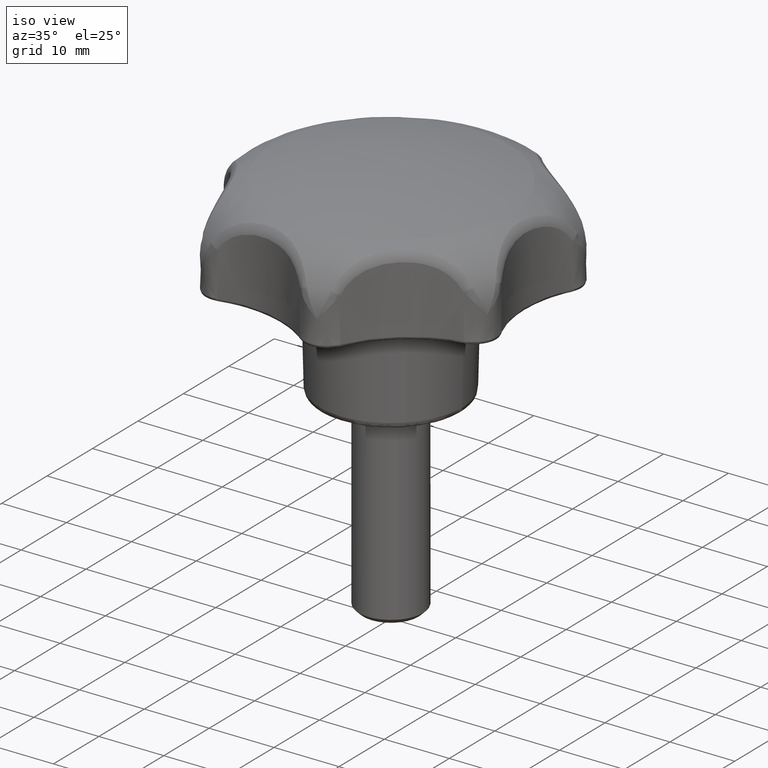
[diagram: clean part render]
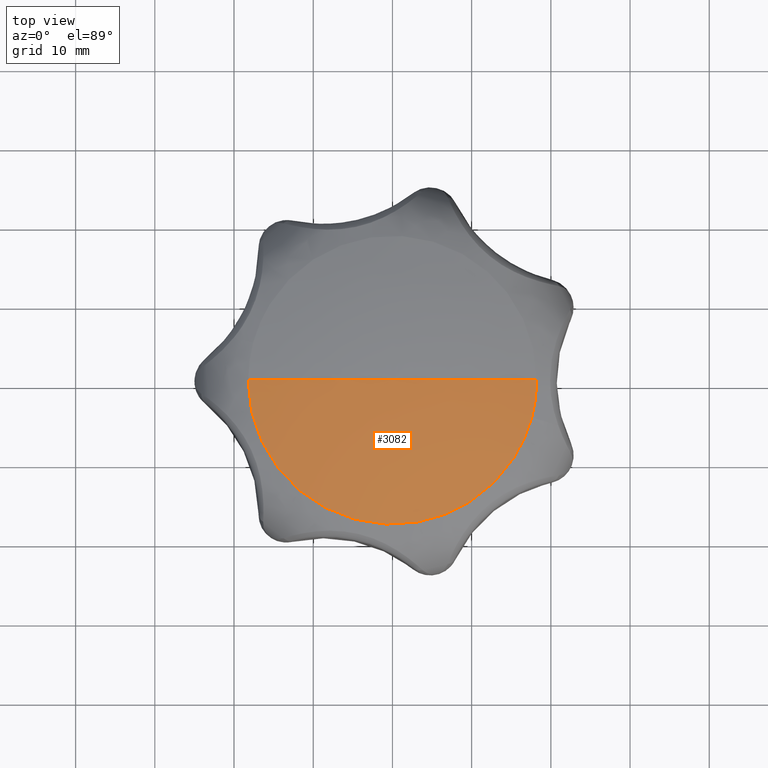
[diagram: tour spotlight — one face highlighted and labeled with its STEP entity id]
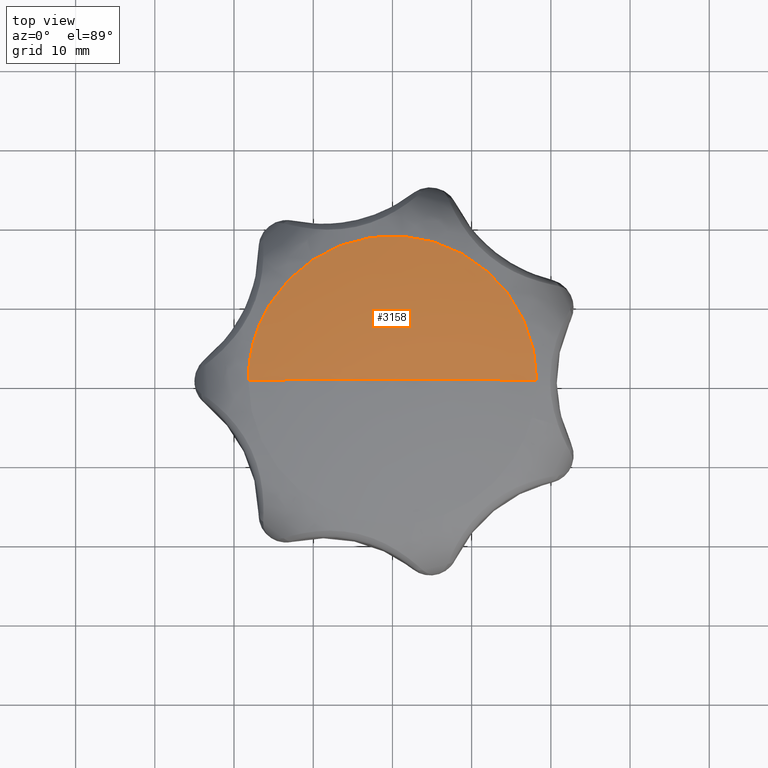
[diagram: tour spotlight — one face highlighted and labeled with its STEP entity id]
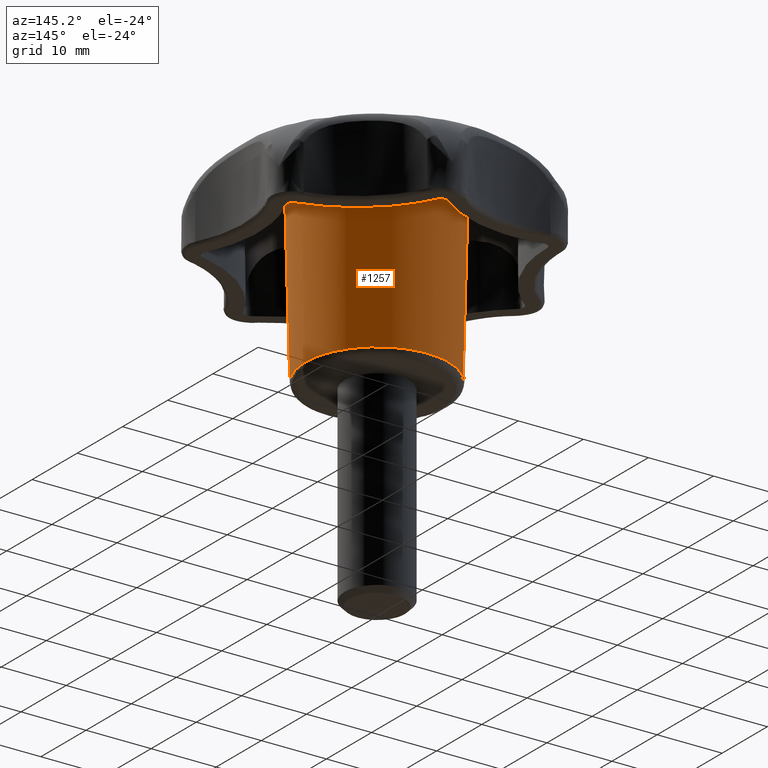
[diagram: tour spotlight — one face highlighted and labeled with its STEP entity id]
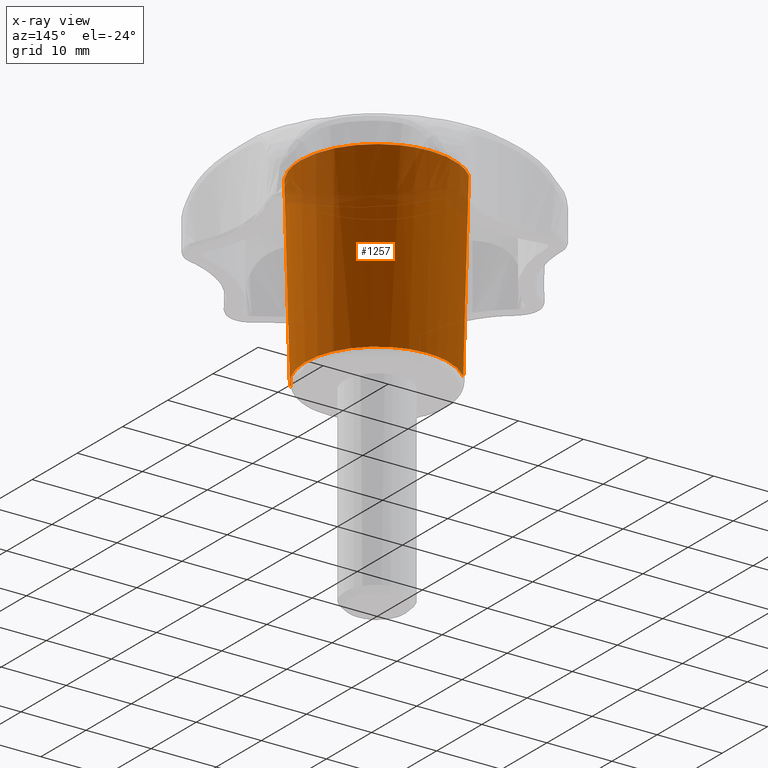
[diagram: x-ray of the same camera — body ghosted, this tour face saturated]
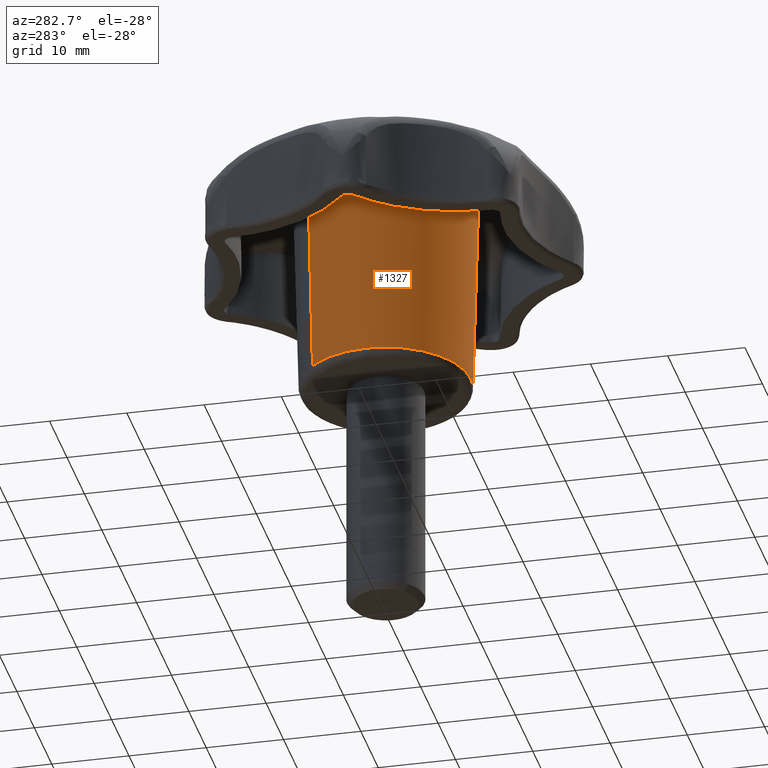
[diagram: tour spotlight — one face highlighted and labeled with its STEP entity id]
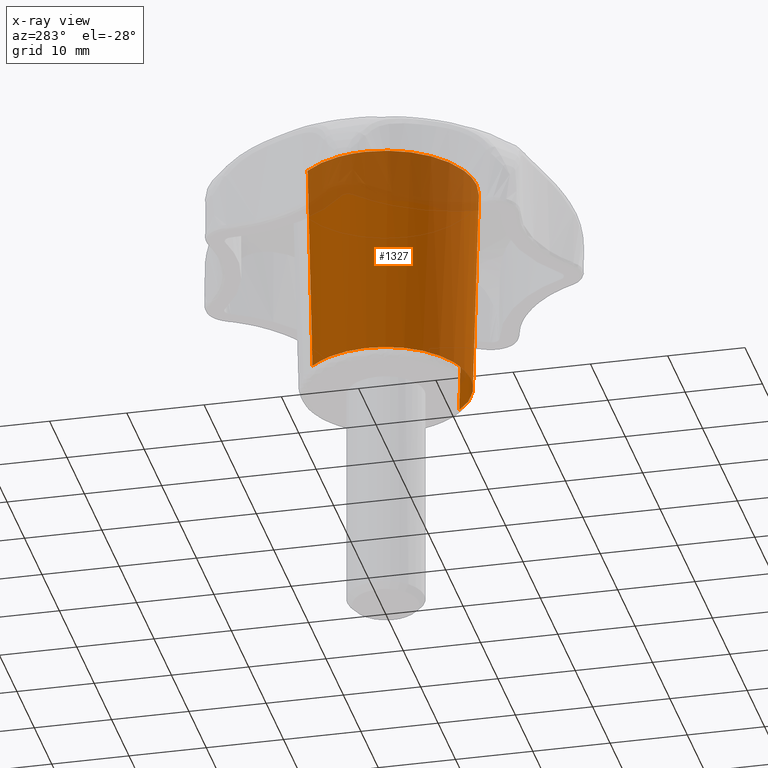
[diagram: x-ray of the same camera — body ghosted, this tour face saturated]
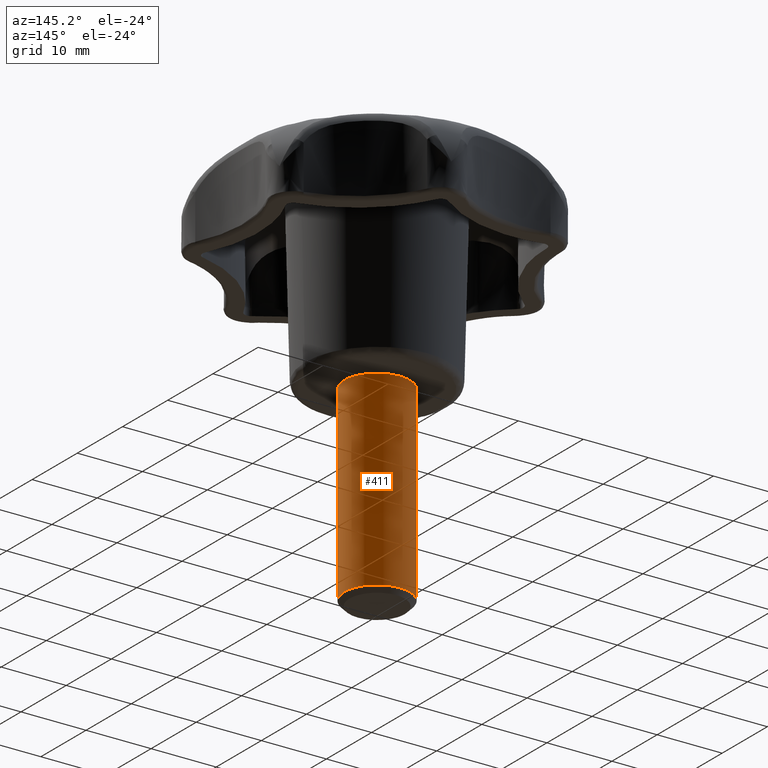
[diagram: tour spotlight — one face highlighted and labeled with its STEP entity id]
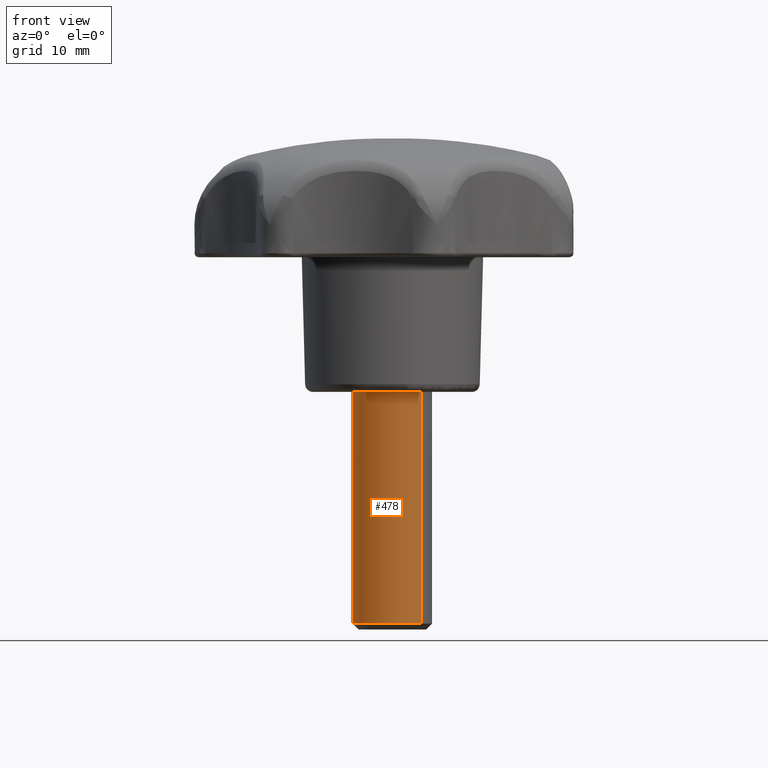
[diagram: tour spotlight — one face highlighted and labeled with its STEP entity id]
A machine part: a face-by-face anatomy tour. The part has 89 B-rep faces; the first image is the clean iso view, then the 6 largest visible faces are spotlighted one at a time (largest first), each with its STEP entity span.

Face 1 — top view, entity #3082. In plain terms, the highlighted face is a freeform B-spline surface patch.
Definition (entity closure, byte-faithful):
#2986=CARTESIAN_POINT('',(1.026090E-014,-7.886015E-015,31.991591414524180));
#2987=CARTESIAN_POINT('',(1.028089E-014,-8.234958E-015,31.991591414524173));
#2988=CARTESIAN_POINT('',(1.028089E-014,-8.584473E-015,31.991591414524169));
#2989=CARTESIAN_POINT('',(1.028089E-014,-2.079693E-014,31.991591414524173));
#2990=CARTESIAN_POINT('',(-1.931560E-015,-2.079693E-014,31.991591414524169));
#2991=CARTESIAN_POINT('',(-1.414401E-014,-2.079693E-014,31.991591414524173));
#2992=CARTESIAN_POINT('',(-1.414401E-014,-8.584473E-015,31.991591414524169));
#2993=CARTESIAN_POINT('',(-1.414401E-014,-7.877057E-015,31.991591414524176));
#2994=CARTESIAN_POINT('',(-1.406233E-014,-7.174372E-015,31.991591414524173));
#2995=CARTESIAN_POINT('',(9.719729502479247,0.556805088107629,32.142813547327407));
#2996=CARTESIAN_POINT('',(9.735665024881241,0.278630605624903,32.142813547327400));
#2997=CARTESIAN_POINT('',(9.735665026463677,0.000000055292106,32.142813547327393));
#2998=CARTESIAN_POINT('',(9.735665081755791,-9.735664971171568,32.142813547327393));
#2999=CARTESIAN_POINT('',(0.000000055292113,-9.735665026463687,32.142813547327400));
#3000=CARTESIAN_POINT('',(-9.735664971171561,-9.735665081755800,32.142813547327393));
#3001=CARTESIAN_POINT('',(-9.735665026463680,-0.000000055292124,32.142813547327393));
#3002=CARTESIAN_POINT('',(-9.735665029666521,0.563946413184989,32.142813547327385));
#3003=CARTESIAN_POINT('',(-9.670549388483508,1.124121004344865,32.142813547327393));
#3004=CARTESIAN_POINT('',(19.108889407046512,1.094673143652359,29.620827052072464));
#3005=CARTESIAN_POINT('',(19.140218482114449,0.547784938556842,29.620827052072453));
#3006=CARTESIAN_POINT('',(19.140218485225503,0.000000108703725,29.620827052072453));
#3007=CARTESIAN_POINT('',(19.140218593929237,-19.140218376521776,29.620827052072471));
#3008=CARTESIAN_POINT('',(0.000000108703734,-19.140218485225514,29.620827052072471));
#3009=CARTESIAN_POINT('',(-19.140218376521762,-19.140218593929255,29.620827052072471));
#3010=CARTESIAN_POINT('',(-19.140218485225503,-0.000000108703748,29.620827052072453));
#3011=CARTESIAN_POINT('',(-19.140218491522258,1.108712916167452,29.620827052072450));
#3012=CARTESIAN_POINT('',(-19.012201802815259,2.210010468571679,29.620827052072453));
#3020=(BOUNDED_SURFACE()B_SPLINE_SURFACE(2,2,((#2986,#2995,#3004),(#2987,#2996,#3005),(#2988,#2997,#3006),(#2989,#2998,#3007),(#2990,#2999,#3008),(#2991,#3000,#3009),(#2992,#3001,#3010),(#2993,#3002,#3011),(#2994,#3003,#3012)),.UNSPECIFIED.,.F.,.F.,.U.)B_SPLINE_SURFACE_WITH_KNOTS((3,2,2,2,3),(3,3),(-6.080000000000000,-6.0,-4.0,-2.0,-1.840000000000000),(-4.0,-3.629661612689495),.UNSPECIFIED.)GEOMETRIC_REPRESENTATION_ITEM()RATIONAL_B_SPLINE_SURFACE(((0.977505800795127,0.923493183930672,0.889483512490219),(0.988284271247462,0.933676084111758,0.899291404933841),(1.0,0.944744453873808,0.909952157589952),(0.707106781186548,0.668035209822551,0.643433341187185),(1.0,0.944744453873808,0.909952157589952),(0.707106781186548,0.668035209822551,0.643433341187185),(1.0,0.944744453873808,0.909952157589952),(0.976568542494924,0.922607714349708,0.888630652277730),(0.956886118190660,0.904012853149463,0.870720587815464)))REPRESENTATION_ITEM('')SURFACE());
#3021=CARTESIAN_POINT('',(18.211198396118341,0.0,29.863114584089448));
#3022=VERTEX_POINT('',#3021);
#3023=CARTESIAN_POINT('',(0.0,0.0,31.991591414524141));
#3024=VERTEX_POINT('',#3023);
#3025=CARTESIAN_POINT('',(18.211198396118341,0.0,29.863114584089448));
#3026=CARTESIAN_POINT('',(14.776254913202660,0.0,30.733965746536619));
#3027=CARTESIAN_POINT('',(8.719590932700960,0.0,31.785595901579139));
#3028=CARTESIAN_POINT('',(2.585559694739553,0.0,32.031797503785903));
#3029=CARTESIAN_POINT('',(0.0,0.0,31.991591414524141));
#3030=B_SPLINE_CURVE_WITH_KNOTS('',3,(#3025,#3026,#3027,#3028,#3029),.UNSPECIFIED.,.F.,.U.,(4,1,4),(2.143459E-010,10.630810520961001,18.388432306233931),.UNSPECIFIED.);
#3031=EDGE_CURVE('',#3022,#3024,#3030,.T.);
#3032=ORIENTED_EDGE('',*,*,#3031,.T.);
#3033=CARTESIAN_POINT('',(-18.211198396059860,0.0,29.863114584104281));
#3034=VERTEX_POINT('',#3033);
#3035=CARTESIAN_POINT('',(-18.211198396059860,0.0,29.863114584104281));
#3036=CARTESIAN_POINT('',(-15.704597608268170,0.0,30.498479006822279));
#3037=CARTESIAN_POINT('',(-9.679118276543552,0.0,31.673448801070968));
#3038=CARTESIAN_POINT('',(-3.543185624413008,0.0,32.046857288203157));
#3039=CARTESIAN_POINT('',(0.0,0.0,31.991591414524141));
#3040=B_SPLINE_CURVE_WITH_KNOTS('',3,(#3035,#3036,#3037,#3038,#3039),.UNSPECIFIED.,.F.,.U.,(4,1,4),(2.146656E-010,7.757621785461710,18.388432306173609),.UNSPECIFIED.);
#3041=EDGE_CURVE('',#3034,#3024,#3040,.T.);
#3042=ORIENTED_EDGE('',*,*,#3041,.F.);
#3043=CARTESIAN_POINT('',(17.580756814501768,-4.750236491730867,29.863114550777400));
#3044=VERTEX_POINT('',#3043);
#3045=CARTESIAN_POINT('',(-18.211198396059860,0.0,29.863114584104281));
#3046=CARTESIAN_POINT('',(-18.211238823272620,-0.852956757359833,29.863114584000829));
#3047=CARTESIAN_POINT('',(-18.095934093009920,-2.490642601457700,29.863114583696511));
#3048=CARTESIAN_POINT('',(-17.650178163731940,-4.632918294722463,29.863114583028320));
#3049=CARTESIAN_POINT('',(-17.005215197233429,-6.613933142519628,29.863114582198481));
#3050=CARTESIAN_POINT('',(-16.110083875087959,-8.610208274116314,29.863114581136170));
#3051=CARTESIAN_POINT('',(-14.917581088524130,-10.527453027242240,29.863114579813431));
#3052=CARTESIAN_POINT('',(-13.564102794895550,-12.200844156803390,29.863114578369679));
#3053=CARTESIAN_POINT('',(-12.309456268956129,-13.458839243775120,29.863114577072210));
#3054=CARTESIAN_POINT('',(-10.651860694172401,-14.830294050462570,29.863114575383861));
#3055=CARTESIAN_POINT('',(-8.602426360027486,-16.136846901131271,29.863114573356171));
#3056=CARTESIAN_POINT('',(-6.248975257626203,-17.160106991130242,29.863114571074540));
#3057=CARTESIAN_POINT('',(-3.786850314560467,-17.870494139846912,29.863114568736780));
#3058=CARTESIAN_POINT('',(-1.246779527348287,-18.244017476064741,29.863114566367031));
#3059=CARTESIAN_POINT('',(1.798343133937308,-18.209418427511569,29.863114563584819));
#3060=CARTESIAN_POINT('',(4.798727993863632,-17.663507831435460,29.863114560905739));
#3061=CARTESIAN_POINT('',(7.463584550534586,-16.677877793815519,29.863114558586979));
#3062=CARTESIAN_POINT('',(9.478922122758226,-15.590547761592189,29.863114556874880));
#3063=CARTESIAN_POINT('',(11.365819879763009,-14.295483576667889,29.863114555305490));
#3064=CARTESIAN_POINT('',(13.277643445756921,-12.581837302891410,29.863114553764412));
#3065=CARTESIAN_POINT('',(15.143383568559461,-10.260462517008710,29.863114552338160));
#3066=CARTESIAN_POINT('',(16.624444077217170,-7.637252013077391,29.863114551303699));
#3067=CARTESIAN_POINT('',(17.313849052112310,-5.738378119844145,29.863114550900349));
#3068=CARTESIAN_POINT('',(17.580756814501768,-4.750236491730867,29.863114550777400));
#3069=B_SPLINE_CURVE_WITH_KNOTS('',3,(#3045,#3046,#3047,#3048,#3049,#3050,#3051,#3052,#3053,#3054,#3055,#3056,#3057,#3058,#3059,#3060,#3061,#3062,#3063,#3064,#3065,#3066,#3067,#3068),.UNSPECIFIED.,.F.,.U.,(4,1,1,1,1,1,1,1,1,1,1,1,1,1,1,1,1,1,1,1,1,4),(0.000000086782329,2.558868140009587,4.913090721017461,6.550802505925866,8.802636127704915,11.463899147086730,13.306320393088800,15.251098472046190,16.786443541551819,19.754778761853249,22.518398749856878,24.463167168941752,27.431486442977850,30.195069686786429,33.572839527156262,36.541192678419449,38.690677110024538,40.430739354273172,43.399086267640278,46.367426303333133,49.335771809903939,52.406421604222317),.UNSPECIFIED.);
#3070=EDGE_CURVE('',#3034,#3044,#3069,.T.);
#3071=ORIENTED_EDGE('',*,*,#3070,.T.);
#3072=CARTESIAN_POINT('',(17.580756814501768,-4.750236491730867,29.863114550777400));
#3073=CARTESIAN_POINT('',(17.828915368958061,-3.832022789808897,29.863114557332040));
#3074=CARTESIAN_POINT('',(18.125256296561648,-2.252730889695959,29.863114568486449));
#3075=CARTESIAN_POINT('',(18.211206972087901,-0.650787820530269,29.863114579604630));
#3076=CARTESIAN_POINT('',(18.211198396118341,0.0,29.863114584089448));
#3077=B_SPLINE_CURVE_WITH_KNOTS('',3,(#3072,#3073,#3074,#3075,#3076),.UNSPECIFIED.,.F.,.U.,(4,1,4),(4.380096E-010,2.853464919490515,4.805835677326216),.UNSPECIFIED.);
#3078=EDGE_CURVE('',#3044,#3022,#3077,.T.);
#3079=ORIENTED_EDGE('',*,*,#3078,.T.);
#3080=EDGE_LOOP('',(#3032,#3042,#3071,#3079));
#3081=FACE_OUTER_BOUND('',#3080,.T.);
#3082=ADVANCED_FACE('',(#3081),#3020,.T.);

Face 2 — top view, entity #3158. In plain terms, the highlighted face is a freeform B-spline surface patch.
Definition (entity closure, byte-faithful):
#3021=CARTESIAN_POINT('',(18.211198396118341,0.0,29.863114584089448));
#3022=VERTEX_POINT('',#3021);
#3023=CARTESIAN_POINT('',(0.0,0.0,31.991591414524141));
#3024=VERTEX_POINT('',#3023);
#3025=CARTESIAN_POINT('',(18.211198396118341,0.0,29.863114584089448));
#3026=CARTESIAN_POINT('',(14.776254913202660,0.0,30.733965746536619));
#3027=CARTESIAN_POINT('',(8.719590932700960,0.0,31.785595901579139));
#3028=CARTESIAN_POINT('',(2.585559694739553,0.0,32.031797503785903));
#3029=CARTESIAN_POINT('',(0.0,0.0,31.991591414524141));
#3030=B_SPLINE_CURVE_WITH_KNOTS('',3,(#3025,#3026,#3027,#3028,#3029),.UNSPECIFIED.,.F.,.U.,(4,1,4),(2.143459E-010,10.630810520961001,18.388432306233931),.UNSPECIFIED.);
#3031=EDGE_CURVE('',#3022,#3024,#3030,.T.);
#3033=CARTESIAN_POINT('',(-18.211198396059860,0.0,29.863114584104281));
#3034=VERTEX_POINT('',#3033);
#3035=CARTESIAN_POINT('',(-18.211198396059860,0.0,29.863114584104281));
#3036=CARTESIAN_POINT('',(-15.704597608268170,0.0,30.498479006822279));
#3037=CARTESIAN_POINT('',(-9.679118276543552,0.0,31.673448801070968));
#3038=CARTESIAN_POINT('',(-3.543185624413008,0.0,32.046857288203157));
#3039=CARTESIAN_POINT('',(0.0,0.0,31.991591414524141));
#3040=B_SPLINE_CURVE_WITH_KNOTS('',3,(#3035,#3036,#3037,#3038,#3039),.UNSPECIFIED.,.F.,.U.,(4,1,4),(2.146656E-010,7.757621785461710,18.388432306173609),.UNSPECIFIED.);
#3041=EDGE_CURVE('',#3034,#3024,#3040,.T.);
#3083=CARTESIAN_POINT('',(-1.026090E-014,7.886015E-015,31.991591414524180));
#3084=CARTESIAN_POINT('',(-1.028089E-014,8.234958E-015,31.991591414524173));
#3085=CARTESIAN_POINT('',(-1.028089E-014,8.584473E-015,31.991591414524169));
#3086=CARTESIAN_POINT('',(-1.028089E-014,2.079693E-014,31.991591414524173));
#3087=CARTESIAN_POINT('',(1.931560E-015,2.079693E-014,31.991591414524169));
#3088=CARTESIAN_POINT('',(1.414401E-014,2.079693E-014,31.991591414524173));
#3089=CARTESIAN_POINT('',(1.414401E-014,8.584473E-015,31.991591414524169));
#3090=CARTESIAN_POINT('',(1.414401E-014,7.877057E-015,31.991591414524176));
#3091=CARTESIAN_POINT('',(1.406233E-014,7.174372E-015,31.991591414524173));
#3092=CARTESIAN_POINT('',(-9.719729502483945,-0.556805088025594,32.142813547327407));
#3093=CARTESIAN_POINT('',(-9.735665024883593,-0.278630605542733,32.142813547327400));
#3094=CARTESIAN_POINT('',(-9.735665026463677,-0.000000055209937,32.142813547327393));
#3095=CARTESIAN_POINT('',(-9.735665081673622,9.735664971253737,32.142813547327393));
#3096=CARTESIAN_POINT('',(-0.000000055209945,9.735665026463687,32.142813547327400));
#3097=CARTESIAN_POINT('',(9.735664971253728,9.735665081673632,32.142813547327393));
#3098=CARTESIAN_POINT('',(9.735665026463680,0.000000055209955,32.142813547327393));
#3099=CARTESIAN_POINT('',(9.735665029661760,-0.563946413267159,32.142813547327385));
#3100=CARTESIAN_POINT('',(9.670549388474020,-1.124121004426484,32.142813547327393));
#3101=CARTESIAN_POINT('',(-19.108889407055756,-1.094673143491080,29.620827052072464));
#3102=CARTESIAN_POINT('',(-19.140218482119060,-0.547784938395298,29.620827052072453));
#3103=CARTESIAN_POINT('',(-19.140218485225503,-0.000000108542181,29.620827052072453));
#3104=CARTESIAN_POINT('',(-19.140218593767699,19.140218376683318,29.620827052072471));
#3105=CARTESIAN_POINT('',(-0.000000108542192,19.140218485225514,29.620827052072471));
#3106=CARTESIAN_POINT('',(19.140218376683318,19.140218593767699,29.620827052072471));
#3107=CARTESIAN_POINT('',(19.140218485225503,0.000000108542203,29.620827052072453));
#3108=CARTESIAN_POINT('',(19.140218491512897,-1.108712916328996,29.620827052072450));
#3109=CARTESIAN_POINT('',(19.012201802796607,-2.210010468732143,29.620827052072453));
#3117=(BOUNDED_SURFACE()B_SPLINE_SURFACE(2,2,((#3083,#3092,#3101),(#3084,#3093,#3102),(#3085,#3094,#3103),(#3086,#3095,#3104),(#3087,#3096,#3105),(#3088,#3097,#3106),(#3089,#3098,#3107),(#3090,#3099,#3108),(#3091,#3100,#3109)),.UNSPECIFIED.,.F.,.F.,.U.)B_SPLINE_SURFACE_WITH_KNOTS((3,2,2,2,3),(3,3),(-6.080000000000000,-6.0,-4.0,-2.0,-1.840000000000000),(-4.0,-3.629661612689495),.UNSPECIFIED.)GEOMETRIC_REPRESENTATION_ITEM()RATIONAL_B_SPLINE_SURFACE(((0.977505800795127,0.923493183930672,0.889483512490219),(0.988284271247462,0.933676084111758,0.899291404933841),(1.0,0.944744453873808,0.909952157589952),(0.707106781186548,0.668035209822551,0.643433341187185),(1.0,0.944744453873808,0.909952157589952),(0.707106781186548,0.668035209822551,0.643433341187185),(1.0,0.944744453873808,0.909952157589952),(0.976568542494924,0.922607714349708,0.888630652277730),(0.956886118190660,0.904012853149463,0.870720587815464)))REPRESENTATION_ITEM('')SURFACE());
#3118=ORIENTED_EDGE('',*,*,#3031,.F.);
#3119=CARTESIAN_POINT('',(-17.580756814447270,4.750236491716143,29.863114550791721));
#3120=VERTEX_POINT('',#3119);
#3121=CARTESIAN_POINT('',(18.211198396118341,0.0,29.863114584089448));
#3122=CARTESIAN_POINT('',(18.211246268773522,0.887088973013643,29.863114583981929));
#3123=CARTESIAN_POINT('',(18.098767704938190,2.422409204360849,29.863114583692500));
#3124=CARTESIAN_POINT('',(17.563883481132638,5.068117704136888,29.863114582882549));
#3125=CARTESIAN_POINT('',(16.615917574800569,7.677496355093007,29.863114581699069));
#3126=CARTESIAN_POINT('',(15.078121228372421,10.346383472175450,29.863114579969299));
#3127=CARTESIAN_POINT('',(13.463933602955800,12.342147537510369,29.863114578251221));
#3128=CARTESIAN_POINT('',(11.901622556712059,13.822909016170939,29.863114576643301));
#3129=CARTESIAN_POINT('',(10.337075011271949,15.037862909114169,29.863114575065548));
#3130=CARTESIAN_POINT('',(8.239328925134714,16.326067259157021,29.863114572991432));
#3131=CARTESIAN_POINT('',(5.802341698422543,17.337247911315089,29.863114570640629));
#3132=CARTESIAN_POINT('',(3.379733048755765,17.933911368657739,29.863114568353801));
#3133=CARTESIAN_POINT('',(0.974066417538719,18.246418702300382,29.863114566116650));
#3134=CARTESIAN_POINT('',(-1.354634945421342,18.219909023606359,29.863114563990582));
#3135=CARTESIAN_POINT('',(-3.922206024335743,17.834252978931438,29.863114561690139));
#3136=CARTESIAN_POINT('',(-6.194125730956456,17.191931919480510,29.863114559691059));
#3137=CARTESIAN_POINT('',(-8.412174839684084,16.204395470808571,29.863114557784449));
#3138=CARTESIAN_POINT('',(-10.255929231670899,15.092874234653671,29.863114556231960));
#3139=CARTESIAN_POINT('',(-11.722365752489869,13.973166371329960,29.863114555028289));
#3140=CARTESIAN_POINT('',(-13.124652042923390,12.672911726011060,29.863114553903639));
#3141=CARTESIAN_POINT('',(-14.610942704587190,10.975509200865559,29.863114552751270));
#3142=CARTESIAN_POINT('',(-16.325907473141250,8.334035043916963,29.863114551503770));
#3143=CARTESIAN_POINT('',(-17.216165019022519,6.100772038438054,29.863114550960979));
#3144=CARTESIAN_POINT('',(-17.580756814447270,4.750236491716143,29.863114550791721));
#3145=B_SPLINE_CURVE_WITH_KNOTS('',3,(#3121,#3122,#3123,#3124,#3125,#3126,#3127,#3128,#3129,#3130,#3131,#3132,#3133,#3134,#3135,#3136,#3137,#3138,#3139,#3140,#3141,#3142,#3143,#3144),.UNSPECIFIED.,.F.,.U.,(4,1,1,1,1,1,1,1,1,1,1,1,1,1,1,1,1,1,1,1,1,4),(0.000000086531564,2.661262084402338,4.606027550086118,8.086135211401185,10.952120822601961,13.818102267037061,15.762871701757989,17.400576791528749,19.754778761703179,23.132561751846389,25.282021696390711,27.226729431589611,30.399812852384191,32.242202319795432,35.005847613275790,37.462399429621563,39.509530349670740,41.454308354472317,42.989653008291093,45.241483140817813,48.209849631855150,52.406421604238112),.UNSPECIFIED.);
#3146=EDGE_CURVE('',#3022,#3120,#3145,.T.);
#3147=ORIENTED_EDGE('',*,*,#3146,.T.);
#3148=CARTESIAN_POINT('',(-17.580756814447270,4.750236491716143,29.863114550791721));
#3149=CARTESIAN_POINT('',(-17.998838152894379,3.203789060092554,29.863114561831491));
#3150=CARTESIAN_POINT('',(-18.211570176275551,1.601982962422130,29.863114573064689));
#3151=CARTESIAN_POINT('',(-18.211198396059860,0.0,29.863114584104281));
#3152=B_SPLINE_CURVE_WITH_KNOTS('',3,(#3148,#3149,#3150,#3151),.UNSPECIFIED.,.F.,.U.,(4,4),(4.380176E-010,4.805835677310963),.UNSPECIFIED.);
#3153=EDGE_CURVE('',#3120,#3034,#3152,.T.);
#3154=ORIENTED_EDGE('',*,*,#3153,.T.);
#3155=ORIENTED_EDGE('',*,*,#3041,.T.);
#3156=EDGE_LOOP('',(#3118,#3147,#3154,#3155));
#3157=FACE_OUTER_BOUND('',#3156,.T.);
#3158=ADVANCED_FACE('',(#3157),#3117,.T.);

Face 3 — auxiliary view, entity #1257. An x-ray twin of the same camera follows (body ghosted, this face saturated) — the face is partly hidden behind the body. In plain terms, the highlighted face is a freeform B-spline surface patch.
Definition (entity closure, byte-faithful):
#1012=CARTESIAN_POINT('',(11.024629472798701,-0.138546872779515,0.973822997330881));
#1013=VERTEX_POINT('',#1012);
#1026=CARTESIAN_POINT('',(7.863942832840470,-7.727875076351858,0.973822694536141));
#1027=VERTEX_POINT('',#1026);
#1028=CARTESIAN_POINT('',(11.024629472798701,-0.138546872779515,0.973822997330881));
#1029=CARTESIAN_POINT('',(11.014061059345419,-0.994122400358506,0.973822963326431));
#1030=CARTESIAN_POINT('',(10.820585521238041,-2.483593108356920,0.973822904061867));
#1031=CARTESIAN_POINT('',(10.217730279982041,-4.232398696489937,0.973822834336476));
#1032=CARTESIAN_POINT('',(9.556154638675526,-5.546913553242148,0.973822781847516));
#1033=CARTESIAN_POINT('',(8.833568895009114,-6.650605436524437,0.973822737713563));
#1034=CARTESIAN_POINT('',(8.202255223149596,-7.383627915913537,0.973822708344477));
#1035=CARTESIAN_POINT('',(7.863942832840470,-7.727875076351858,0.973822694536141));
#1036=B_SPLINE_CURVE_WITH_KNOTS('',3,(#1028,#1029,#1030,#1031,#1032,#1033,#1034,#1035),.UNSPECIFIED.,.F.,.U.,(4,1,1,1,1,4),(0.000000010891480,2.566887547608635,4.475587455526249,5.528674753388035,6.976670805796193,8.424653782565663),.UNSPECIFIED.);
#1037=EDGE_CURVE('',#1013,#1027,#1036,.T.);
#1124=CARTESIAN_POINT('',(-7.863942832840468,7.727875076351857,0.973822694536141));
#1125=VERTEX_POINT('',#1124);
#1137=CARTESIAN_POINT('',(0.069231420780168,11.025282638570861,0.973822998665383));
#1138=VERTEX_POINT('',#1137);
#1139=CARTESIAN_POINT('',(-7.863942832840468,7.727875076351857,0.973822694536141));
#1140=CARTESIAN_POINT('',(-7.300257000871294,8.301685800549821,0.973822716063872));
#1141=CARTESIAN_POINT('',(-6.333072894243096,9.091055944996811,0.973822753048734));
#1142=CARTESIAN_POINT('',(-4.851107853128828,9.931386653371829,0.973822809807759));
#1143=CARTESIAN_POINT('',(-3.660393294378075,10.426293325953850,0.973822855455465));
#1144=CARTESIAN_POINT('',(-2.022871738369438,10.894122379771360,0.973822918283480));
#1145=CARTESIAN_POINT('',(-0.781083078317250,11.030805362936050,0.973822965980773));
#1146=CARTESIAN_POINT('',(0.069231420780168,11.025282638570861,0.973822998665383));
#1147=B_SPLINE_CURVE_WITH_KNOTS('',3,(#1139,#1140,#1141,#1142,#1143,#1144,#1145,#1146),.UNSPECIFIED.,.F.,.U.,(4,1,1,1,1,4),(0.000000012105644,2.413051131021782,3.722993420300190,5.101875947147761,6.273930211954546,8.824869355341214),.UNSPECIFIED.);
#1148=EDGE_CURVE('',#1125,#1138,#1147,.T.);
#1150=CARTESIAN_POINT('',(11.025499999999999,0.0,0.973822999999896));
#1151=VERTEX_POINT('',#1150);
#1152=CARTESIAN_POINT('',(0.069231420780168,11.025282638570861,0.973822998665383));
#1153=CARTESIAN_POINT('',(0.698111475250057,11.021384540998930,0.973822998741507));
#1154=CARTESIAN_POINT('',(1.910277191904739,10.909667472046790,0.973822998888306));
#1155=CARTESIAN_POINT('',(3.501112112150108,10.491847146055219,0.973822999081178));
#1156=CARTESIAN_POINT('',(4.996663925235344,9.869458396029932,0.973822999262670));
#1157=CARTESIAN_POINT('',(6.392682969251642,9.042308866564433,0.973822999432264));
#1158=CARTESIAN_POINT('',(7.636694291552017,8.001080722916949,0.973822999583639));
#1159=CARTESIAN_POINT('',(8.633976034782569,6.900948925944468,0.973822999705179));
#1160=CARTESIAN_POINT('',(9.593913376612466,5.539908652376466,0.973822999822407));
#1161=CARTESIAN_POINT('',(10.392879134543421,3.869442174082455,0.973822999920383));
#1162=CARTESIAN_POINT('',(10.913702303165820,1.909109784498821,0.973822999984911));
#1163=CARTESIAN_POINT('',(11.025563717019010,0.651354626208701,0.973822999999411));
#1164=CARTESIAN_POINT('',(11.025499999999999,0.0,0.973822999999896));
#1165=B_SPLINE_CURVE_WITH_KNOTS('',3,(#1152,#1153,#1154,#1155,#1156,#1157,#1158,#1159,#1160,#1161,#1162,#1163,#1164),.UNSPECIFIED.,.F.,.U.,(4,1,1,1,1,1,1,1,1,1,4),(0.000000044567383,1.886669291832739,3.638588048739742,4.918834345884660,6.738145781079547,8.490059523337218,9.770285758217131,11.185288227712210,13.476261535592560,15.295556035844850,17.249609869040121),.UNSPECIFIED.);
#1166=EDGE_CURVE('',#1138,#1151,#1165,.T.);
#1168=CARTESIAN_POINT('',(11.025499999999999,0.0,0.973822999999896));
#1169=CARTESIAN_POINT('',(11.024629472798701,-0.138546872779515,0.973822997330881));
#1170=QUASI_UNIFORM_CURVE('',1,(#1168,#1169),.UNSPECIFIED.,.F.,.U.);
#1171=EDGE_CURVE('',#1151,#1013,#1170,.T.);
#1177=CARTESIAN_POINT('',(7.851020927227798,-7.715176777850765,0.281965460490177));
#1178=CARTESIAN_POINT('',(15.566197705078569,0.135844149377033,0.281965460490177));
#1179=CARTESIAN_POINT('',(7.715176777850765,7.851020927227798,0.281965460490177));
#1180=CARTESIAN_POINT('',(-0.135844149377033,15.566197705078569,0.281965460490177));
#1181=CARTESIAN_POINT('',(-7.851020927227798,7.715176777850765,0.281965460490177));
#1182=CARTESIAN_POINT('',(8.394063769339169,-8.248823492548175,29.357278446220771));
#1183=CARTESIAN_POINT('',(16.642887261887353,0.145240276790995,29.357278446220771));
#1184=CARTESIAN_POINT('',(8.248823492548175,8.394063769339169,29.357278446220771));
#1185=CARTESIAN_POINT('',(-0.145240276790995,16.642887261887353,29.357278446220771));
#1186=CARTESIAN_POINT('',(-8.394063769339169,8.248823492548175,29.357278446220771));
#1194=(BOUNDED_SURFACE()B_SPLINE_SURFACE(2,1,((#1177,#1182),(#1178,#1183),(#1179,#1184),(#1180,#1185),(#1181,#1186)),.UNSPECIFIED.,.F.,.F.,.U.)B_SPLINE_SURFACE_WITH_KNOTS((3,2,3),(2,2),(0.0,19.499097747828031,38.998195495656063),(0.0,29.085279774529759),.UNSPECIFIED.)GEOMETRIC_REPRESENTATION_ITEM()RATIONAL_B_SPLINE_SURFACE(((1.0,1.0),(0.707106781186548,0.707106781186548),(1.0,1.0),(0.707106781186548,0.707106781186548),(1.0,1.0)))REPRESENTATION_ITEM('')SURFACE());
#1195=ORIENTED_EDGE('',*,*,#1037,.F.);
#1196=ORIENTED_EDGE('',*,*,#1171,.F.);
#1197=ORIENTED_EDGE('',*,*,#1166,.F.);
#1198=ORIENTED_EDGE('',*,*,#1148,.F.);
#1199=CARTESIAN_POINT('',(-8.380813609390751,8.235802538151127,28.648124076745312));
#1200=VERTEX_POINT('',#1199);
#1201=CARTESIAN_POINT('',(-7.863942832840468,7.727875076351857,0.973822694536141));
#1202=CARTESIAN_POINT('',(-8.380813609390751,8.235802538151127,28.648124076745312));
#1203=QUASI_UNIFORM_CURVE('',1,(#1201,#1202),.UNSPECIFIED.,.F.,.U.);
#1204=EDGE_CURVE('',#1125,#1200,#1203,.T.);
#1205=ORIENTED_EDGE('',*,*,#1204,.T.);
#1206=CARTESIAN_POINT('',(-0.000000915710032,11.750176638984170,28.648124470944850));
#1207=VERTEX_POINT('',#1206);
#1208=CARTESIAN_POINT('',(-0.000000915710032,11.750176638984170,28.648124470944850));
#1209=CARTESIAN_POINT('',(-0.996324263535779,11.750463367255060,28.648124424081889));
#1210=CARTESIAN_POINT('',(-2.527060436781734,11.554264076904010,28.648124352082249));
#1211=CARTESIAN_POINT('',(-4.305726188727920,10.959540379249200,28.648124268420791));
#1212=CARTESIAN_POINT('',(-5.541355610083567,10.386439748000990,28.648124210302310));
#1213=CARTESIAN_POINT('',(-6.898907841415528,9.573155504140923,28.648124146447490));
#1214=CARTESIAN_POINT('',(-7.852891394257711,8.773166342059666,28.648124101577249));
#1215=CARTESIAN_POINT('',(-8.380813609390751,8.235802538151127,28.648124076745312));
#1216=B_SPLINE_CURVE_WITH_KNOTS('',3,(#1208,#1209,#1210,#1211,#1212,#1213,#1214,#1215),.UNSPECIFIED.,.F.,.U.,(4,1,1,1,1,4),(0.000000011626703,2.988874643447018,4.592673795426680,5.613249211303081,7.071238659454464,9.331118704997559),.UNSPECIFIED.);
#1217=EDGE_CURVE('',#1207,#1200,#1216,.T.);
#1218=ORIENTED_EDGE('',*,*,#1217,.F.);
#1219=CARTESIAN_POINT('',(11.750157794754051,0.0,28.648124470930650));
#1220=VERTEX_POINT('',#1219);
#1221=CARTESIAN_POINT('',(11.750157794754051,0.0,28.648124470930650));
#1222=CARTESIAN_POINT('',(11.750170401908230,0.480653483736254,28.648124470930540));
#1223=CARTESIAN_POINT('',(11.688146467486860,1.490024746797080,28.648124470930899));
#1224=CARTESIAN_POINT('',(11.410345952056410,2.932858982886439,28.648124470930910));
#1225=CARTESIAN_POINT('',(10.901639655110451,4.488825839371819,28.648124470931819));
#1226=CARTESIAN_POINT('',(10.167226260066530,5.981938209146093,28.648124470932331));
#1227=CARTESIAN_POINT('',(9.186527613037313,7.383465827243956,28.648124470933560));
#1228=CARTESIAN_POINT('',(8.010336320845317,8.657493611810375,28.648124470935919));
#1229=CARTESIAN_POINT('',(6.503763868207519,9.863313110125562,28.648124470936871));
#1230=CARTESIAN_POINT('',(4.569482813197621,10.904945881188681,28.648124470937798));
#1231=CARTESIAN_POINT('',(2.355170571191049,11.591425934286910,28.648124470943980));
#1232=CARTESIAN_POINT('',(0.793084511516653,11.750281133414489,28.648124470942800));
#1233=CARTESIAN_POINT('',(-0.000000915710032,11.750176638984170,28.648124470944850));
#1234=B_SPLINE_CURVE_WITH_KNOTS('',3,(#1221,#1222,#1223,#1224,#1225,#1226,#1227,#1228,#1229,#1230,#1231,#1232,#1233),.UNSPECIFIED.,.F.,.U.,(4,1,1,1,1,1,1,1,1,1,4),(0.000000043022027,1.441961841397411,3.028123456379651,4.397990464125375,6.344654594976968,8.002924331185104,9.516938139249698,11.535700446157390,13.770760138704841,16.077905685286890,18.457144794642740),.UNSPECIFIED.);
#1235=EDGE_CURVE('',#1220,#1207,#1234,.T.);
#1236=ORIENTED_EDGE('',*,*,#1235,.F.);
#1237=CARTESIAN_POINT('',(8.380813609435350,-8.235802538195324,28.648124076726710));
#1238=VERTEX_POINT('',#1237);
#1239=CARTESIAN_POINT('',(8.380813609435350,-8.235802538195324,28.648124076726710));
#1240=CARTESIAN_POINT('',(8.747293321668796,-7.862896058320619,28.648124094575479));
#1241=CARTESIAN_POINT('',(9.445863637126877,-7.049978992792391,28.648124133485041));
#1242=CARTESIAN_POINT('',(10.466988174677940,-5.468987823967905,28.648124209158240));
#1243=CARTESIAN_POINT('',(11.230750620221180,-3.664833481727789,28.648124295513060));
#1244=CARTESIAN_POINT('',(11.665209707235940,-1.734886160255654,28.648124387890430));
#1245=CARTESIAN_POINT('',(11.750180669753910,-0.570375713279749,28.648124443629172));
#1246=CARTESIAN_POINT('',(11.750157794754051,0.0,28.648124470930650));
#1247=B_SPLINE_CURVE_WITH_KNOTS('',3,(#1239,#1240,#1241,#1242,#1243,#1244,#1245,#1246),.UNSPECIFIED.,.F.,.U.,(4,1,1,1,1,4),(0.000000011107415,1.568535372555771,3.208375543210786,5.632470464704349,7.414903510738518,9.126031608205651),.UNSPECIFIED.);
#1248=EDGE_CURVE('',#1238,#1220,#1247,.T.);
#1249=ORIENTED_EDGE('',*,*,#1248,.F.);
#1250=CARTESIAN_POINT('',(7.863942832840470,-7.727875076351858,0.973822694536141));
#1251=CARTESIAN_POINT('',(8.380813609435350,-8.235802538195324,28.648124076726710));
#1252=QUASI_UNIFORM_CURVE('',1,(#1250,#1251),.UNSPECIFIED.,.F.,.U.);
#1253=EDGE_CURVE('',#1027,#1238,#1252,.T.);
#1254=ORIENTED_EDGE('',*,*,#1253,.F.);
#1255=EDGE_LOOP('',(#1195,#1196,#1197,#1198,#1205,#1218,#1236,#1249,#1254));
#1256=FACE_OUTER_BOUND('',#1255,.T.);
#1257=ADVANCED_FACE('',(#1256),#1194,.T.);

Face 4 — auxiliary view, entity #1327. An x-ray twin of the same camera follows (body ghosted, this face saturated) — the face is partly hidden behind the body. In plain terms, the highlighted face is a freeform B-spline surface patch.
Definition (entity closure, byte-faithful):
#1026=CARTESIAN_POINT('',(7.863942832840470,-7.727875076351858,0.973822694536141));
#1027=VERTEX_POINT('',#1026);
#1039=CARTESIAN_POINT('',(-0.069231420780112,-11.025282638570861,0.973822998665384));
#1040=VERTEX_POINT('',#1039);
#1041=CARTESIAN_POINT('',(7.863942832840470,-7.727875076351858,0.973822694536141));
#1042=CARTESIAN_POINT('',(7.268080023764101,-8.334515268152009,0.973822717292728));
#1043=CARTESIAN_POINT('',(6.151121537833257,-9.234427721397939,0.973822760007735));
#1044=CARTESIAN_POINT('',(4.294935993485765,-10.211656110189489,0.973822831117534));
#1045=CARTESIAN_POINT('',(2.298850249949204,-10.863806284178009,0.973822907683086));
#1046=CARTESIAN_POINT('',(0.781073224326939,-11.030787621028390,0.973822965981154));
#1047=CARTESIAN_POINT('',(-0.069231420780112,-11.025282638570861,0.973822998665384));
#1048=B_SPLINE_CURVE_WITH_KNOTS('',3,(#1041,#1042,#1043,#1044,#1045,#1046,#1047),.UNSPECIFIED.,.F.,.U.,(4,1,1,1,4),(0.000000012103605,2.550939155491074,4.274554928423200,6.273930211953734,8.824869355341182),.UNSPECIFIED.);
#1049=EDGE_CURVE('',#1027,#1040,#1048,.T.);
#1051=CARTESIAN_POINT('',(-11.025499999999990,0.0,0.973822999999896));
#1052=VERTEX_POINT('',#1051);
#1053=CARTESIAN_POINT('',(-0.069231420780112,-11.025282638570861,0.973822998665384));
#1054=CARTESIAN_POINT('',(-0.698113233045956,-11.021391729032411,0.973822998741506));
#1055=CARTESIAN_POINT('',(-1.708241295739914,-10.928257578930760,0.973822998863838));
#1056=CARTESIAN_POINT('',(-3.175663895328296,-10.585681721942080,0.973822999041720));
#1057=CARTESIAN_POINT('',(-4.635586474570813,-10.055288073350351,0.973822999218812));
#1058=CARTESIAN_POINT('',(-6.291510953344466,-9.134712046086460,0.973822999419969));
#1059=CARTESIAN_POINT('',(-7.745213567000557,-7.917980506175822,0.973822999596832));
#1060=CARTESIAN_POINT('',(-8.917587606989116,-6.550950534881646,0.973822999739765));
#1061=CARTESIAN_POINT('',(-9.854529847511595,-5.064069439448441,0.973822999854341));
#1062=CARTESIAN_POINT('',(-10.508007224579730,-3.479339106131419,0.973822999934611));
#1063=CARTESIAN_POINT('',(-10.927673427560970,-1.751887010535113,0.973822999986709));
#1064=CARTESIAN_POINT('',(-11.025559691453070,-0.651353975416564,0.973822999999434));
#1065=CARTESIAN_POINT('',(-11.025499999999990,0.0,0.973822999999896));
#1066=B_SPLINE_CURVE_WITH_KNOTS('',3,(#1053,#1054,#1055,#1056,#1057,#1058,#1059,#1060,#1061,#1062,#1063,#1064,#1065),.UNSPECIFIED.,.F.,.U.,(4,1,1,1,1,1,1,1,1,1,4),(0.000000044567219,1.886669291832950,3.032155807841821,4.514547938883787,6.535994401832790,8.692158578594826,10.174555164313119,11.926480920923700,13.947933902698880,15.295556035844941,17.249609869040182),.UNSPECIFIED.);
#1067=EDGE_CURVE('',#1040,#1052,#1066,.T.);
#1069=CARTESIAN_POINT('',(-11.024629472798701,0.138546872779519,0.973822997330881));
#1070=VERTEX_POINT('',#1069);
#1071=CARTESIAN_POINT('',(-11.025499999999990,0.0,0.973822999999896));
#1072=CARTESIAN_POINT('',(-11.024629472798701,0.138546872779519,0.973822997330881));
#1073=QUASI_UNIFORM_CURVE('',1,(#1071,#1072),.UNSPECIFIED.,.F.,.U.);
#1074=EDGE_CURVE('',#1052,#1070,#1073,.T.);
#1124=CARTESIAN_POINT('',(-7.863942832840468,7.727875076351857,0.973822694536141));
#1125=VERTEX_POINT('',#1124);
#1126=CARTESIAN_POINT('',(-11.024629472798701,0.138546872779519,0.973822997330881));
#1127=CARTESIAN_POINT('',(-11.016691906217019,0.774737067787099,0.973822972045769));
#1128=CARTESIAN_POINT('',(-10.896739775625299,1.979959584488380,0.973822924105007));
#1129=CARTESIAN_POINT('',(-10.444318442329701,3.658476760539062,0.973822857229786));
#1130=CARTESIAN_POINT('',(-9.871085524780831,4.968235109461954,0.973822804963282));
#1131=CARTESIAN_POINT('',(-9.062110788422622,6.352330781946986,0.973822749653419));
#1132=CARTESIAN_POINT('',(-8.386865072216756,7.195911705623757,0.973822715874152));
#1133=CARTESIAN_POINT('',(-7.863942832840468,7.727875076351857,0.973822694536141));
#1134=B_SPLINE_CURVE_WITH_KNOTS('',3,(#1126,#1127,#1128,#1129,#1130,#1131,#1132,#1133),.UNSPECIFIED.,.F.,.U.,(4,1,1,1,1,4),(0.000000010890645,1.908709500948428,3.619971568114905,5.199583174793831,6.186854632886750,8.424653782565654),.UNSPECIFIED.);
#1135=EDGE_CURVE('',#1070,#1125,#1134,.T.);
#1199=CARTESIAN_POINT('',(-8.380813609390751,8.235802538151127,28.648124076745312));
#1200=VERTEX_POINT('',#1199);
#1201=CARTESIAN_POINT('',(-7.863942832840468,7.727875076351857,0.973822694536141));
#1202=CARTESIAN_POINT('',(-8.380813609390751,8.235802538151127,28.648124076745312));
#1203=QUASI_UNIFORM_CURVE('',1,(#1201,#1202),.UNSPECIFIED.,.F.,.U.);
#1204=EDGE_CURVE('',#1125,#1200,#1203,.T.);
#1237=CARTESIAN_POINT('',(8.380813609435350,-8.235802538195324,28.648124076726710));
#1238=VERTEX_POINT('',#1237);
#1250=CARTESIAN_POINT('',(7.863942832840470,-7.727875076351858,0.973822694536141));
#1251=CARTESIAN_POINT('',(8.380813609435350,-8.235802538195324,28.648124076726710));
#1252=QUASI_UNIFORM_CURVE('',1,(#1250,#1251),.UNSPECIFIED.,.F.,.U.);
#1253=EDGE_CURVE('',#1027,#1238,#1252,.T.);
#1258=CARTESIAN_POINT('',(-7.851020927227798,7.715176777850765,0.281965460490177));
#1259=CARTESIAN_POINT('',(-15.566197705078569,-0.135844149377033,0.281965460490177));
#1260=CARTESIAN_POINT('',(-7.715176777850765,-7.851020927227798,0.281965460490177));
#1261=CARTESIAN_POINT('',(0.135844149377033,-15.566197705078569,0.281965460490177));
#1262=CARTESIAN_POINT('',(7.851020927227798,-7.715176777850765,0.281965460490177));
#1263=CARTESIAN_POINT('',(-8.394063769339169,8.248823492548175,29.357278446220771));
#1264=CARTESIAN_POINT('',(-16.642887261887353,-0.145240276790995,29.357278446220771));
#1265=CARTESIAN_POINT('',(-8.248823492548175,-8.394063769339169,29.357278446220771));
#1266=CARTESIAN_POINT('',(0.145240276790995,-16.642887261887353,29.357278446220771));
#1267=CARTESIAN_POINT('',(8.394063769339169,-8.248823492548175,29.357278446220771));
#1275=(BOUNDED_SURFACE()B_SPLINE_SURFACE(2,1,((#1258,#1263),(#1259,#1264),(#1260,#1265),(#1261,#1266),(#1262,#1267)),.UNSPECIFIED.,.F.,.F.,.U.)B_SPLINE_SURFACE_WITH_KNOTS((3,2,3),(2,2),(0.0,19.499097747828031,38.998195495656063),(0.0,29.085279774529759),.UNSPECIFIED.)GEOMETRIC_REPRESENTATION_ITEM()RATIONAL_B_SPLINE_SURFACE(((1.0,1.0),(0.707106781186548,0.707106781186548),(1.0,1.0),(0.707106781186548,0.707106781186548),(1.0,1.0)))REPRESENTATION_ITEM('')SURFACE());
#1276=ORIENTED_EDGE('',*,*,#1049,.F.);
#1277=ORIENTED_EDGE('',*,*,#1253,.T.);
#1278=CARTESIAN_POINT('',(0.000000915886742,-11.750176638984170,28.648124470944850));
#1279=VERTEX_POINT('',#1278);
#1280=CARTESIAN_POINT('',(0.000000915886742,-11.750176638984170,28.648124470944850));
#1281=CARTESIAN_POINT('',(0.729001205572973,-11.750260100002000,28.648124436654040));
#1282=CARTESIAN_POINT('',(1.846752912877913,-11.645796053892710,28.648124384076990));
#1283=CARTESIAN_POINT('',(3.479062529114834,-11.253661400133881,28.648124307296161));
#1284=CARTESIAN_POINT('',(5.099897054336253,-10.649728725333430,28.648124231054911));
#1285=CARTESIAN_POINT('',(6.830241143899380,-9.642000389145837,28.648124149663150));
#1286=CARTESIAN_POINT('',(7.920981267989633,-8.703788295702148,28.648124098356210));
#1287=CARTESIAN_POINT('',(8.380813609435350,-8.235802538195324,28.648124076726710));
#1288=B_SPLINE_CURVE_WITH_KNOTS('',3,(#1280,#1281,#1282,#1283,#1284,#1285,#1286,#1287),.UNSPECIFIED.,.F.,.U.,(4,1,1,1,1,4),(0.000000011630011,2.186980310715729,3.353370849550877,5.030053245664028,7.362838209393038,9.331118704848294),.UNSPECIFIED.);
#1289=EDGE_CURVE('',#1279,#1238,#1288,.T.);
#1290=ORIENTED_EDGE('',*,*,#1289,.F.);
#1291=CARTESIAN_POINT('',(-11.750157794577410,0.0,28.648124470959051));
#1292=VERTEX_POINT('',#1291);
#1293=CARTESIAN_POINT('',(-11.750157794577410,0.0,28.648124470959051));
#1294=CARTESIAN_POINT('',(-11.750323452688679,-0.865189530781954,28.648124470959100));
#1295=CARTESIAN_POINT('',(-11.600814615766931,-2.210943222138486,28.648124470958891));
#1296=CARTESIAN_POINT('',(-11.117908591479560,-3.875950382819262,28.648124470958201));
#1297=CARTESIAN_POINT('',(-10.602265785883469,-5.120841276987565,28.648124470957860));
#1298=CARTESIAN_POINT('',(-9.917295809163678,-6.365403699569684,28.648124470956699));
#1299=CARTESIAN_POINT('',(-9.102615685866548,-7.470914940538592,28.648124470955850));
#1300=CARTESIAN_POINT('',(-8.136682159494608,-8.510731059205495,28.648124470954741));
#1301=CARTESIAN_POINT('',(-7.206483489627646,-9.313124025877102,28.648124470953469));
#1302=CARTESIAN_POINT('',(-5.914300082031446,-10.193871740370669,28.648124470952020));
#1303=CARTESIAN_POINT('',(-4.255306716720393,-11.029066804728989,28.648124470949270));
#1304=CARTESIAN_POINT('',(-2.162946457651477,-11.621919276063091,28.648124470948659));
#1305=CARTESIAN_POINT('',(-0.672912125154119,-11.750207889739871,28.648124470944570));
#1306=CARTESIAN_POINT('',(0.000000915886742,-11.750176638984170,28.648124470944850));
#1307=B_SPLINE_CURVE_WITH_KNOTS('',3,(#1293,#1294,#1295,#1296,#1297,#1298,#1299,#1300,#1301,#1302,#1303,#1304,#1305,#1306),.UNSPECIFIED.,.F.,.U.,(4,1,1,1,1,1,1,1,1,1,1,4),(0.000000043027960,2.595522636617552,4.037496986604863,5.191072552277745,6.633037559950132,8.291297702775735,9.300643656319549,10.886829517908710,11.968303349223760,13.987055806685881,16.438397074590650,18.457144794642780),.UNSPECIFIED.);
#1308=EDGE_CURVE('',#1292,#1279,#1307,.T.);
#1309=ORIENTED_EDGE('',*,*,#1308,.F.);
#1310=CARTESIAN_POINT('',(-8.380813609390751,8.235802538151127,28.648124076745312));
#1311=CARTESIAN_POINT('',(-8.897252156482558,7.710372597324360,28.648124101895910));
#1312=CARTESIAN_POINT('',(-9.710318908404174,6.710115326360077,28.648124149774169));
#1313=CARTESIAN_POINT('',(-10.525347693811050,5.282565666729790,28.648124218105810));
#1314=CARTESIAN_POINT('',(-11.104493527013130,3.926019278658621,28.648124283037848));
#1315=CARTESIAN_POINT('',(-11.600631274890009,2.233930087576946,28.648124364031080));
#1316=CARTESIAN_POINT('',(-11.750288985560861,0.831808209985880,28.648124431144200));
#1317=CARTESIAN_POINT('',(-11.750157794577410,0.0,28.648124470959051));
#1318=B_SPLINE_CURVE_WITH_KNOTS('',3,(#1310,#1311,#1312,#1313,#1314,#1315,#1316,#1317),.UNSPECIFIED.,.F.,.U.,(4,1,1,1,1,4),(0.000000011107725,2.210210380884039,3.850046252223697,4.919500566471294,6.630631461038750,9.126031608106118),.UNSPECIFIED.);
#1319=EDGE_CURVE('',#1200,#1292,#1318,.T.);
#1320=ORIENTED_EDGE('',*,*,#1319,.F.);
#1321=ORIENTED_EDGE('',*,*,#1204,.F.);
#1322=ORIENTED_EDGE('',*,*,#1135,.F.);
#1323=ORIENTED_EDGE('',*,*,#1074,.F.);
#1324=ORIENTED_EDGE('',*,*,#1067,.F.);
#1325=EDGE_LOOP('',(#1276,#1277,#1290,#1309,#1320,#1321,#1322,#1323,#1324));
#1326=FACE_OUTER_BOUND('',#1325,.T.);
#1327=ADVANCED_FACE('',(#1326),#1275,.T.);

Face 5 — auxiliary view, entity #411. In plain terms, the highlighted face is a freeform B-spline surface patch.
Definition (entity closure, byte-faithful):
#200=CARTESIAN_POINT('',(3.377951214581588,3.686386876670459,-29.249999912913960));
#201=VERTEX_POINT('',#200);
#207=CARTESIAN_POINT('',(5.0,0.0,-29.250000000000000));
#208=VERTEX_POINT('',#207);
#209=CARTESIAN_POINT('',(3.377951214581588,3.686386876670459,-29.249999912913960));
#210=CARTESIAN_POINT('',(3.776143900684795,3.321964002015739,-29.249999921523031));
#211=CARTESIAN_POINT('',(4.357608101217911,2.582733687046054,-29.249999938986321));
#212=CARTESIAN_POINT('',(4.884679033810933,1.295287793450837,-29.249999969400498));
#213=CARTESIAN_POINT('',(5.000154278366939,0.453395717612131,-29.249999989289119));
#214=CARTESIAN_POINT('',(5.0,0.0,-29.250000000000000));
#215=B_SPLINE_CURVE_WITH_KNOTS('',3,(#209,#210,#211,#212,#213,#214),.UNSPECIFIED.,.F.,.U.,(4,1,1,4),(0.000000015606246,1.619213775729159,2.785043016733636,4.145186060836434),.UNSPECIFIED.);
#216=EDGE_CURVE('',#201,#208,#215,.T.);
#218=CARTESIAN_POINT('',(3.626871706707022,-3.441772781156548,-29.249999999999659));
#219=VERTEX_POINT('',#218);
#220=CARTESIAN_POINT('',(5.0,0.0,-29.250000000000000));
#221=CARTESIAN_POINT('',(5.000037941634928,-0.336112408548693,-29.249999999999989));
#222=CARTESIAN_POINT('',(4.927995779166504,-1.047879995283238,-29.249999999999851));
#223=CARTESIAN_POINT('',(4.657310886883757,-1.880439373233708,-29.249999999999790));
#224=CARTESIAN_POINT('',(4.232208286170832,-2.707947324041270,-29.249999999999819));
#225=CARTESIAN_POINT('',(3.899147003143783,-3.155002592475773,-29.249999999999542));
#226=CARTESIAN_POINT('',(3.626871706707022,-3.441772781156548,-29.249999999999659));
#227=B_SPLINE_CURVE_WITH_KNOTS('',3,(#220,#221,#222,#223,#224,#225,#226),.UNSPECIFIED.,.F.,.U.,(4,1,1,1,4),(0.000000017130471,1.008343172172899,2.135313243710535,2.609827805371941,3.796113345800827),.UNSPECIFIED.);
#228=EDGE_CURVE('',#208,#219,#227,.T.);
#293=CARTESIAN_POINT('',(-3.626871706707022,3.441772781156548,-29.249999999999659));
#294=VERTEX_POINT('',#293);
#305=CARTESIAN_POINT('',(0.000000699349627,4.999999999999951,-29.250000000000000));
#306=VERTEX_POINT('',#305);
#307=CARTESIAN_POINT('',(-3.626871706707022,3.441772781156548,-29.249999999999659));
#308=CARTESIAN_POINT('',(-3.379592387646580,3.702441973830066,-29.249999999999769));
#309=CARTESIAN_POINT('',(-2.877114344645733,4.128802857311139,-29.249999999999709));
#310=CARTESIAN_POINT('',(-2.116698596248354,4.551379732023722,-29.249999999999840));
#311=CARTESIAN_POINT('',(-1.183446584726913,4.897449378312444,-29.249999999999758));
#312=CARTESIAN_POINT('',(-0.486135809248500,5.000229466577054,-29.249999999999879));
#313=CARTESIAN_POINT('',(0.000000699349627,4.999999999999951,-29.250000000000000));
#314=B_SPLINE_CURVE_WITH_KNOTS('',3,(#307,#308,#309,#310,#311,#312,#313),.UNSPECIFIED.,.F.,.U.,(4,1,1,1,4),(0.000000017079040,1.077885010264660,1.965562905171121,2.599598027940739,4.057918294997412),.UNSPECIFIED.);
#315=EDGE_CURVE('',#294,#306,#314,.T.);
#317=CARTESIAN_POINT('',(0.000000699349627,4.999999999999951,-29.250000000000000));
#318=CARTESIAN_POINT('',(0.289753535266739,5.000023811706366,-29.249999992529979));
#319=CARTESIAN_POINT('',(0.888569241002110,4.947803057121980,-29.249999977091999));
#320=CARTESIAN_POINT('',(1.805613947251097,4.697453090579971,-29.249999953450001));
#321=CARTESIAN_POINT('',(2.656824661778580,4.271845071288702,-29.249999931505219));
#322=CARTESIAN_POINT('',(3.164336743305262,3.882154936017840,-29.249999918421011));
#323=CARTESIAN_POINT('',(3.377951214581588,3.686386876670459,-29.249999912913960));
#324=B_SPLINE_CURVE_WITH_KNOTS('',3,(#317,#318,#319,#320,#321,#322,#323),.UNSPECIFIED.,.F.,.U.,(4,1,1,1,4),(0.000000015265395,0.869260000897035,1.796481426123513,2.839584829909202,3.708844815552094),.UNSPECIFIED.);
#325=EDGE_CURVE('',#306,#201,#324,.T.);
#333=CARTESIAN_POINT('',(-3.626871855061437,3.441772878468769,0.731250000000001));
#334=CARTESIAN_POINT('',(-0.185098976592668,7.068644733530205,0.731250000000001));
#335=CARTESIAN_POINT('',(3.441772878468769,3.626871855061437,0.731250000000001));
#336=CARTESIAN_POINT('',(7.068644733530205,0.185098976592668,0.731250000000001));
#337=CARTESIAN_POINT('',(3.626871855061437,-3.441772878468769,0.731250000000001));
#338=CARTESIAN_POINT('',(-3.626871855061437,3.441772878468769,-29.999531250000000));
#339=CARTESIAN_POINT('',(-0.185098976592668,7.068644733530205,-29.999531250000004));
#340=CARTESIAN_POINT('',(3.441772878468769,3.626871855061437,-29.999531250000000));
#341=CARTESIAN_POINT('',(7.068644733530205,0.185098976592668,-29.999531250000004));
#342=CARTESIAN_POINT('',(3.626871855061437,-3.441772878468769,-29.999531250000000));
#350=(BOUNDED_SURFACE()B_SPLINE_SURFACE(2,1,((#333,#338),(#334,#339),(#335,#340),(#336,#341),(#337,#342)),.UNSPECIFIED.,.F.,.F.,.U.)B_SPLINE_SURFACE_WITH_KNOTS((3,2,3),(2,2),(0.0,8.284271247461897,16.568542494923790),(0.0,30.730781250000000),.UNSPECIFIED.)GEOMETRIC_REPRESENTATION_ITEM()RATIONAL_B_SPLINE_SURFACE(((1.0,1.0),(0.707106781186548,0.707106781186548),(1.0,1.0),(0.707106781186548,0.707106781186548),(1.0,1.0)))REPRESENTATION_ITEM('')SURFACE());
#351=ORIENTED_EDGE('',*,*,#315,.F.);
#352=CARTESIAN_POINT('',(-3.626871706972429,3.441772780876868,-7.216450E-016));
#353=VERTEX_POINT('',#352);
#354=CARTESIAN_POINT('',(-3.626871706972429,3.441772780876868,-7.216450E-016));
#355=CARTESIAN_POINT('',(-3.626871706707022,3.441772781156548,-29.249999999999659));
#356=QUASI_UNIFORM_CURVE('',1,(#354,#355),.UNSPECIFIED.,.F.,.U.);
#357=EDGE_CURVE('',#353,#294,#356,.T.);
#358=ORIENTED_EDGE('',*,*,#357,.F.);
#359=CARTESIAN_POINT('',(0.000000699349627,4.999999999999951,0.0));
#360=VERTEX_POINT('',#359);
#361=CARTESIAN_POINT('',(-3.626871706972429,3.441772780876868,-7.216450E-016));
#362=CARTESIAN_POINT('',(-3.321448870265977,3.763827842391888,-6.608745E-016));
#363=CARTESIAN_POINT('',(-2.773488372535563,4.205214737031731,-5.518458E-016));
#364=CARTESIAN_POINT('',(-1.884903540133014,4.655645971730891,-3.750426E-016));
#365=CARTESIAN_POINT('',(-1.014456177713532,4.929075158332980,-2.018482E-016));
#366=CARTESIAN_POINT('',(-0.359295477673617,5.000056474242489,-7.148978E-017));
#367=CARTESIAN_POINT('',(0.000000699349627,4.999999999999951,0.0));
#368=B_SPLINE_CURVE_WITH_KNOTS('',3,(#361,#362,#363,#364,#365,#366,#367),.UNSPECIFIED.,.F.,.U.,(4,1,1,1,4),(0.000000017079131,1.331505460410780,2.092355407110200,2.980033302088824,4.057918295382985),.UNSPECIFIED.);
#369=EDGE_CURVE('',#353,#360,#368,.T.);
#370=ORIENTED_EDGE('',*,*,#369,.T.);
#371=CARTESIAN_POINT('',(5.0,0.0,0.0));
#372=VERTEX_POINT('',#371);
#373=CARTESIAN_POINT('',(0.000000699349627,4.999999999999951,0.0));
#374=CARTESIAN_POINT('',(0.327247962557112,5.000041241634579,0.0));
#375=CARTESIAN_POINT('',(0.879462665902220,4.945581585278641,0.0));
#376=CARTESIAN_POINT('',(1.730458618223403,4.715710694710306,0.0));
#377=CARTESIAN_POINT('',(2.496566715731829,4.364831902815342,0.0));
#378=CARTESIAN_POINT('',(3.134323642303599,3.915613991553566,0.0));
#379=CARTESIAN_POINT('',(3.689446639057463,3.399950824541691,0.0));
#380=CARTESIAN_POINT('',(4.103280018154733,2.889336636932014,0.0));
#381=CARTESIAN_POINT('',(4.488931381533901,2.236851414999752,0.0));
#382=CARTESIAN_POINT('',(4.743915860991170,1.631794866150369,0.0));
#383=CARTESIAN_POINT('',(4.947593671986832,0.859006357372156,0.0));
#384=CARTESIAN_POINT('',(5.000042834718463,0.327248379475253,0.0));
#385=CARTESIAN_POINT('',(5.0,0.0,0.0));
#386=B_SPLINE_CURVE_WITH_KNOTS('',3,(#373,#374,#375,#376,#377,#378,#379,#380,#381,#382,#383,#384,#385),.UNSPECIFIED.,.F.,.U.,(4,1,1,1,1,1,1,1,1,1,4),(0.000000062421688,0.981738639659572,1.656708616767849,2.638474123663116,3.497520807814785,3.988356644490653,4.908754418840283,5.460998911752534,6.258686001105112,6.872291390254941,7.854030520210185),.UNSPECIFIED.);
#387=EDGE_CURVE('',#360,#372,#386,.T.);
#388=ORIENTED_EDGE('',*,*,#387,.T.);
#389=CARTESIAN_POINT('',(3.626871706972429,-3.441772780876868,-7.216450E-016));
#390=VERTEX_POINT('',#389);
#391=CARTESIAN_POINT('',(5.0,0.0,0.0));
#392=CARTESIAN_POINT('',(5.000092557445769,-0.395433214301308,-8.291145E-017));
#393=CARTESIAN_POINT('',(4.917466655394131,-1.087386828502567,-2.279951E-016));
#394=CARTESIAN_POINT('',(4.624829723325076,-1.952303998724704,-4.093444E-016));
#395=CARTESIAN_POINT('',(4.221906852010321,-2.725402802007463,-5.714419E-016));
#396=CARTESIAN_POINT('',(3.871897279715480,-3.183663890735451,-6.675266E-016));
#397=CARTESIAN_POINT('',(3.626871706972429,-3.441772780876868,-7.216450E-016));
#398=B_SPLINE_CURVE_WITH_KNOTS('',3,(#391,#392,#393,#394,#395,#396,#397),.UNSPECIFIED.,.F.,.U.,(4,1,1,1,4),(0.000000017130551,1.186285557442483,2.075990386233542,2.728454595405208,3.796113345415249),.UNSPECIFIED.);
#399=EDGE_CURVE('',#372,#390,#398,.T.);
#400=ORIENTED_EDGE('',*,*,#399,.T.);
#401=CARTESIAN_POINT('',(3.626871706972429,-3.441772780876868,-7.216450E-016));
#402=CARTESIAN_POINT('',(3.626871706707022,-3.441772781156548,-29.249999999999659));
#403=QUASI_UNIFORM_CURVE('',1,(#401,#402),.UNSPECIFIED.,.F.,.U.);
#404=EDGE_CURVE('',#390,#219,#403,.T.);
#405=ORIENTED_EDGE('',*,*,#404,.T.);
#406=ORIENTED_EDGE('',*,*,#228,.F.);
#407=ORIENTED_EDGE('',*,*,#216,.F.);
#408=ORIENTED_EDGE('',*,*,#325,.F.);
#409=EDGE_LOOP('',(#351,#358,#370,#388,#400,#405,#406,#407,#408));
#410=FACE_OUTER_BOUND('',#409,.T.);
#411=ADVANCED_FACE('',(#410),#350,.T.);

Face 6 — front view, entity #478. In plain terms, the highlighted face is a freeform B-spline surface patch.
Definition (entity closure, byte-faithful):
#218=CARTESIAN_POINT('',(3.626871706707022,-3.441772781156548,-29.249999999999659));
#219=VERTEX_POINT('',#218);
#230=CARTESIAN_POINT('',(-0.000000699349627,-4.999999999999951,-29.250000000000000));
#231=VERTEX_POINT('',#230);
#232=CARTESIAN_POINT('',(3.626871706707022,-3.441772781156548,-29.249999999999659));
#233=CARTESIAN_POINT('',(3.379592387646580,-3.702441973830066,-29.249999999999769));
#234=CARTESIAN_POINT('',(2.877114344645733,-4.128802857311139,-29.249999999999709));
#235=CARTESIAN_POINT('',(2.116698596248354,-4.551379732023722,-29.249999999999840));
#236=CARTESIAN_POINT('',(1.183446584726913,-4.897449378312444,-29.249999999999758));
#237=CARTESIAN_POINT('',(0.486135809248500,-5.000229466577054,-29.249999999999879));
#238=CARTESIAN_POINT('',(-0.000000699349627,-4.999999999999951,-29.250000000000000));
#239=B_SPLINE_CURVE_WITH_KNOTS('',3,(#232,#233,#234,#235,#236,#237,#238),.UNSPECIFIED.,.F.,.U.,(4,1,1,1,4),(0.000000017079040,1.077885010264660,1.965562905171121,2.599598027940739,4.057918294997412),.UNSPECIFIED.);
#240=EDGE_CURVE('',#219,#231,#239,.T.);
#242=CARTESIAN_POINT('',(-3.377951214581588,-3.686386876670459,-29.249999912913960));
#243=VERTEX_POINT('',#242);
#244=CARTESIAN_POINT('',(-0.000000699349627,-4.999999999999951,-29.250000000000000));
#245=CARTESIAN_POINT('',(-0.289753535266739,-5.000023811706366,-29.249999992529979));
#246=CARTESIAN_POINT('',(-0.888569241002110,-4.947803057121980,-29.249999977091999));
#247=CARTESIAN_POINT('',(-1.805613947251097,-4.697453090579971,-29.249999953450001));
#248=CARTESIAN_POINT('',(-2.656824661778580,-4.271845071288702,-29.249999931505219));
#249=CARTESIAN_POINT('',(-3.164336743305262,-3.882154936017840,-29.249999918421011));
#250=CARTESIAN_POINT('',(-3.377951214581588,-3.686386876670459,-29.249999912913960));
#251=B_SPLINE_CURVE_WITH_KNOTS('',3,(#244,#245,#246,#247,#248,#249,#250),.UNSPECIFIED.,.F.,.U.,(4,1,1,1,4),(0.000000015265395,0.869260000897035,1.796481426123513,2.839584829909202,3.708844815552094),.UNSPECIFIED.);
#252=EDGE_CURVE('',#231,#243,#251,.T.);
#282=CARTESIAN_POINT('',(-5.0,0.0,-29.250000000000000));
#283=VERTEX_POINT('',#282);
#284=CARTESIAN_POINT('',(-3.377951214581588,-3.686386876670459,-29.249999912913960));
#285=CARTESIAN_POINT('',(-3.776143900684795,-3.321964002015739,-29.249999921523031));
#286=CARTESIAN_POINT('',(-4.357608101217911,-2.582733687046054,-29.249999938986321));
#287=CARTESIAN_POINT('',(-4.884679033810933,-1.295287793450837,-29.249999969400498));
#288=CARTESIAN_POINT('',(-5.000154278366939,-0.453395717612131,-29.249999989289119));
#289=CARTESIAN_POINT('',(-5.0,0.0,-29.250000000000000));
#290=B_SPLINE_CURVE_WITH_KNOTS('',3,(#284,#285,#286,#287,#288,#289),.UNSPECIFIED.,.F.,.U.,(4,1,1,4),(0.000000015606246,1.619213775729159,2.785043016733636,4.145186060836434),.UNSPECIFIED.);
#291=EDGE_CURVE('',#243,#283,#290,.T.);
#293=CARTESIAN_POINT('',(-3.626871706707022,3.441772781156548,-29.249999999999659));
#294=VERTEX_POINT('',#293);
#295=CARTESIAN_POINT('',(-5.0,0.0,-29.250000000000000));
#296=CARTESIAN_POINT('',(-5.000037941634928,0.336112408548693,-29.249999999999989));
#297=CARTESIAN_POINT('',(-4.927995779166504,1.047879995283238,-29.249999999999851));
#298=CARTESIAN_POINT('',(-4.657310886883757,1.880439373233708,-29.249999999999790));
#299=CARTESIAN_POINT('',(-4.232208286170832,2.707947324041270,-29.249999999999819));
#300=CARTESIAN_POINT('',(-3.899147003143783,3.155002592475773,-29.249999999999542));
#301=CARTESIAN_POINT('',(-3.626871706707022,3.441772781156548,-29.249999999999659));
#302=B_SPLINE_CURVE_WITH_KNOTS('',3,(#295,#296,#297,#298,#299,#300,#301),.UNSPECIFIED.,.F.,.U.,(4,1,1,1,4),(0.000000017130471,1.008343172172899,2.135313243710535,2.609827805371941,3.796113345800827),.UNSPECIFIED.);
#303=EDGE_CURVE('',#283,#294,#302,.T.);
#352=CARTESIAN_POINT('',(-3.626871706972429,3.441772780876868,-7.216450E-016));
#353=VERTEX_POINT('',#352);
#354=CARTESIAN_POINT('',(-3.626871706972429,3.441772780876868,-7.216450E-016));
#355=CARTESIAN_POINT('',(-3.626871706707022,3.441772781156548,-29.249999999999659));
#356=QUASI_UNIFORM_CURVE('',1,(#354,#355),.UNSPECIFIED.,.F.,.U.);
#357=EDGE_CURVE('',#353,#294,#356,.T.);
#389=CARTESIAN_POINT('',(3.626871706972429,-3.441772780876868,-7.216450E-016));
#390=VERTEX_POINT('',#389);
#401=CARTESIAN_POINT('',(3.626871706972429,-3.441772780876868,-7.216450E-016));
#402=CARTESIAN_POINT('',(3.626871706707022,-3.441772781156548,-29.249999999999659));
#403=QUASI_UNIFORM_CURVE('',1,(#401,#402),.UNSPECIFIED.,.F.,.U.);
#404=EDGE_CURVE('',#390,#219,#403,.T.);
#412=CARTESIAN_POINT('',(3.626871855061437,-3.441772878468769,0.731250000000001));
#413=CARTESIAN_POINT('',(0.185098976592668,-7.068644733530205,0.731250000000001));
#414=CARTESIAN_POINT('',(-3.441772878468769,-3.626871855061437,0.731250000000001));
#415=CARTESIAN_POINT('',(-7.068644733530205,-0.185098976592668,0.731250000000001));
#416=CARTESIAN_POINT('',(-3.626871855061437,3.441772878468769,0.731250000000001));
#417=CARTESIAN_POINT('',(3.626871855061437,-3.441772878468769,-29.999531250000000));
#418=CARTESIAN_POINT('',(0.185098976592668,-7.068644733530205,-29.999531250000004));
#419=CARTESIAN_POINT('',(-3.441772878468769,-3.626871855061437,-29.999531250000000));
#420=CARTESIAN_POINT('',(-7.068644733530205,-0.185098976592668,-29.999531250000004));
#421=CARTESIAN_POINT('',(-3.626871855061437,3.441772878468769,-29.999531250000000));
#429=(BOUNDED_SURFACE()B_SPLINE_SURFACE(2,1,((#412,#417),(#413,#418),(#414,#419),(#415,#420),(#416,#421)),.UNSPECIFIED.,.F.,.F.,.U.)B_SPLINE_SURFACE_WITH_KNOTS((3,2,3),(2,2),(0.0,8.284271247461897,16.568542494923790),(0.0,30.730781250000000),.UNSPECIFIED.)GEOMETRIC_REPRESENTATION_ITEM()RATIONAL_B_SPLINE_SURFACE(((1.0,1.0),(0.707106781186548,0.707106781186548),(1.0,1.0),(0.707106781186548,0.707106781186548),(1.0,1.0)))REPRESENTATION_ITEM('')SURFACE());
#430=ORIENTED_EDGE('',*,*,#303,.F.);
#431=ORIENTED_EDGE('',*,*,#291,.F.);
#432=ORIENTED_EDGE('',*,*,#252,.F.);
#433=ORIENTED_EDGE('',*,*,#240,.F.);
#434=ORIENTED_EDGE('',*,*,#404,.F.);
#435=CARTESIAN_POINT('',(-0.000000699349627,-4.999999999999951,0.0));
#436=VERTEX_POINT('',#435);
#437=CARTESIAN_POINT('',(3.626871706972429,-3.441772780876868,-7.216450E-016));
#438=CARTESIAN_POINT('',(3.321448870265977,-3.763827842391888,-6.608745E-016));
#439=CARTESIAN_POINT('',(2.773488372535563,-4.205214737031731,-5.518458E-016));
#440=CARTESIAN_POINT('',(1.884903540133014,-4.655645971730891,-3.750426E-016));
#441=CARTESIAN_POINT('',(1.014456177713532,-4.929075158332980,-2.018482E-016));
#442=CARTESIAN_POINT('',(0.359295477673617,-5.000056474242489,-7.148978E-017));
#443=CARTESIAN_POINT('',(-0.000000699349627,-4.999999999999951,0.0));
#444=B_SPLINE_CURVE_WITH_KNOTS('',3,(#437,#438,#439,#440,#441,#442,#443),.UNSPECIFIED.,.F.,.U.,(4,1,1,1,4),(0.000000017079131,1.331505460410780,2.092355407110200,2.980033302088824,4.057918295382985),.UNSPECIFIED.);
#445=EDGE_CURVE('',#390,#436,#444,.T.);
#446=ORIENTED_EDGE('',*,*,#445,.T.);
#447=CARTESIAN_POINT('',(-5.0,0.0,0.0));
#448=VERTEX_POINT('',#447);
#449=CARTESIAN_POINT('',(-0.000000699349627,-4.999999999999951,0.0));
#450=CARTESIAN_POINT('',(-0.327247962557112,-5.000041241634579,0.0));
#451=CARTESIAN_POINT('',(-0.879462665902220,-4.945581585278641,0.0));
#452=CARTESIAN_POINT('',(-1.730458618223403,-4.715710694710306,0.0));
#453=CARTESIAN_POINT('',(-2.496566715731829,-4.364831902815342,0.0));
#454=CARTESIAN_POINT('',(-3.134323642303599,-3.915613991553566,0.0));
#455=CARTESIAN_POINT('',(-3.689446639057463,-3.399950824541691,0.0));
#456=CARTESIAN_POINT('',(-4.103280018154733,-2.889336636932014,0.0));
#457=CARTESIAN_POINT('',(-4.488931381533901,-2.236851414999752,0.0));
#458=CARTESIAN_POINT('',(-4.743915860991170,-1.631794866150369,0.0));
#459=CARTESIAN_POINT('',(-4.947593671986832,-0.859006357372156,0.0));
#460=CARTESIAN_POINT('',(-5.000042834718463,-0.327248379475253,0.0));
#461=CARTESIAN_POINT('',(-5.0,0.0,0.0));
#462=B_SPLINE_CURVE_WITH_KNOTS('',3,(#449,#450,#451,#452,#453,#454,#455,#456,#457,#458,#459,#460,#461),.UNSPECIFIED.,.F.,.U.,(4,1,1,1,1,1,1,1,1,1,4),(0.000000062421688,0.981738639659572,1.656708616767849,2.638474123663116,3.497520807814785,3.988356644490653,4.908754418840283,5.460998911752534,6.258686001105112,6.872291390254941,7.854030520210185),.UNSPECIFIED.);
#463=EDGE_CURVE('',#436,#448,#462,.T.);
#464=ORIENTED_EDGE('',*,*,#463,.T.);
#465=CARTESIAN_POINT('',(-5.0,0.0,0.0));
#466=CARTESIAN_POINT('',(-5.000092557445769,0.395433214301308,-8.291145E-017));
#467=CARTESIAN_POINT('',(-4.917466655394131,1.087386828502567,-2.279951E-016));
#468=CARTESIAN_POINT('',(-4.624829723325076,1.952303998724704,-4.093444E-016));
#469=CARTESIAN_POINT('',(-4.221906852010321,2.725402802007463,-5.714419E-016));
#470=CARTESIAN_POINT('',(-3.871897279715480,3.183663890735451,-6.675266E-016));
#471=CARTESIAN_POINT('',(-3.626871706972429,3.441772780876868,-7.216450E-016));
#472=B_SPLINE_CURVE_WITH_KNOTS('',3,(#465,#466,#467,#468,#469,#470,#471),.UNSPECIFIED.,.F.,.U.,(4,1,1,1,4),(0.000000017130551,1.186285557442483,2.075990386233542,2.728454595405208,3.796113345415249),.UNSPECIFIED.);
#473=EDGE_CURVE('',#448,#353,#472,.T.);
#474=ORIENTED_EDGE('',*,*,#473,.T.);
#475=ORIENTED_EDGE('',*,*,#357,.T.);
#476=EDGE_LOOP('',(#430,#431,#432,#433,#434,#446,#464,#474,#475));
#477=FACE_OUTER_BOUND('',#476,.T.);
#478=ADVANCED_FACE('',(#477),#429,.T.);